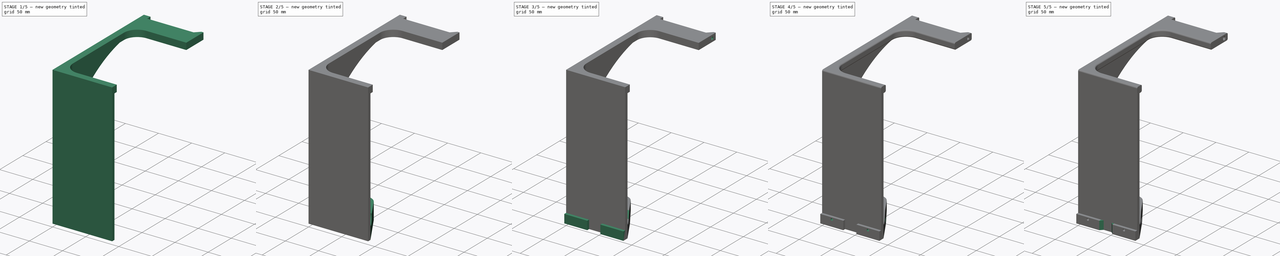
[diagram: build sequence overview — one tinted view per stage of 5, left to right]
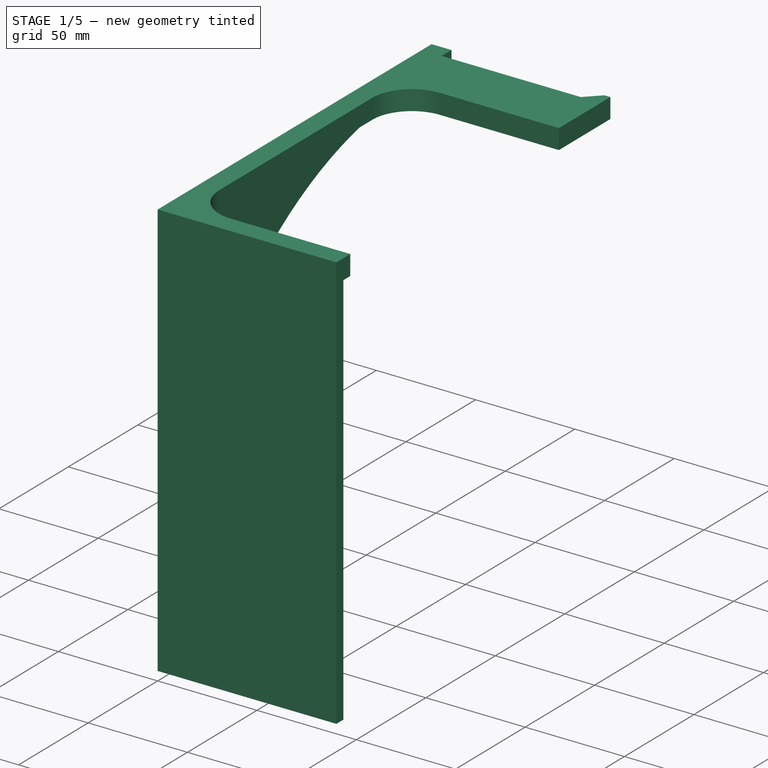
[diagram: stage 1 of 5 — iso view after this stage's code; geometry added in this stage tinted green]
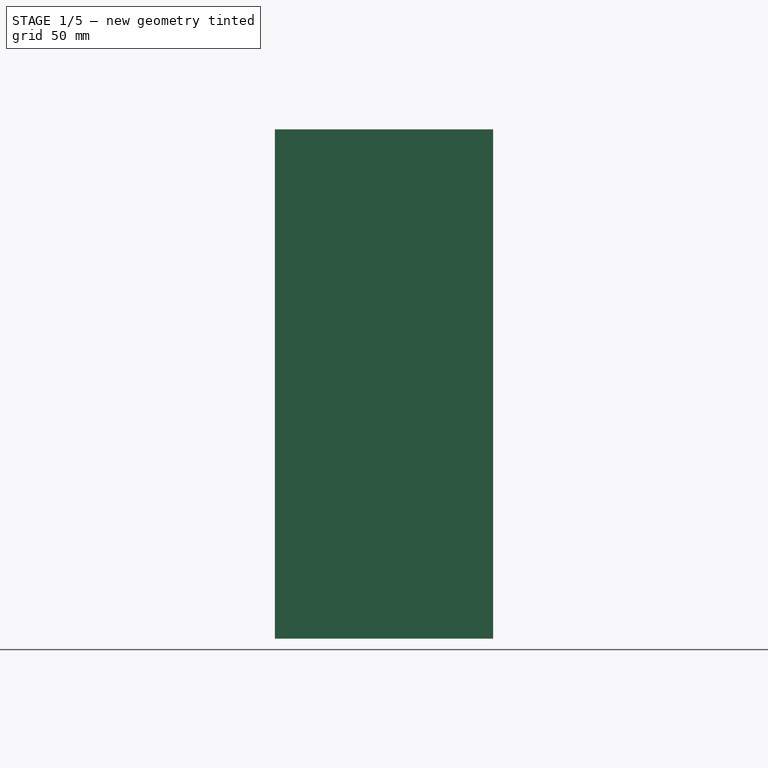
[diagram: stage 1 of 5 — front view after this stage's code; geometry added in this stage tinted green]
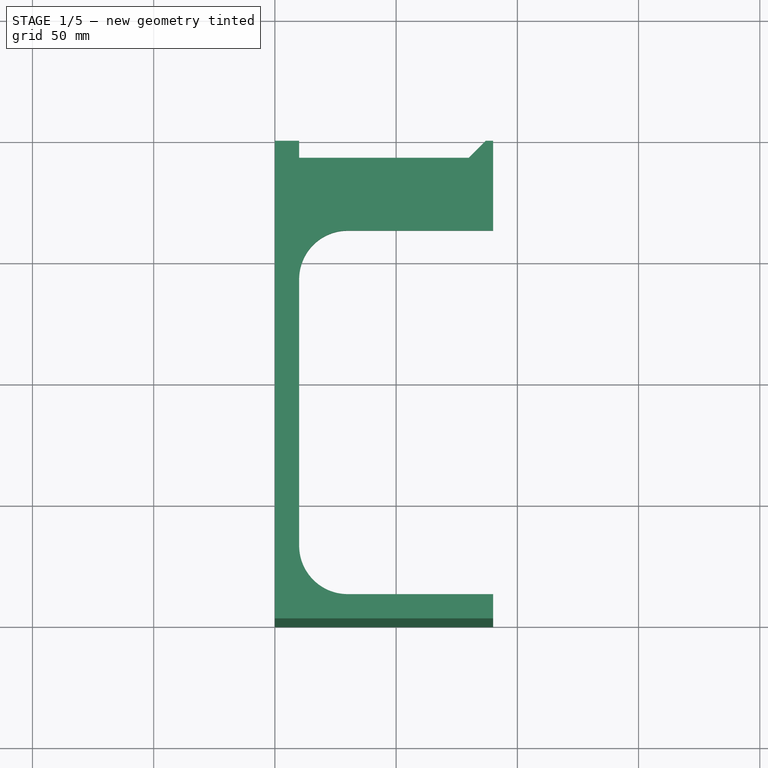
[diagram: stage 1 of 5 — top view after this stage's code; geometry added in this stage tinted green]
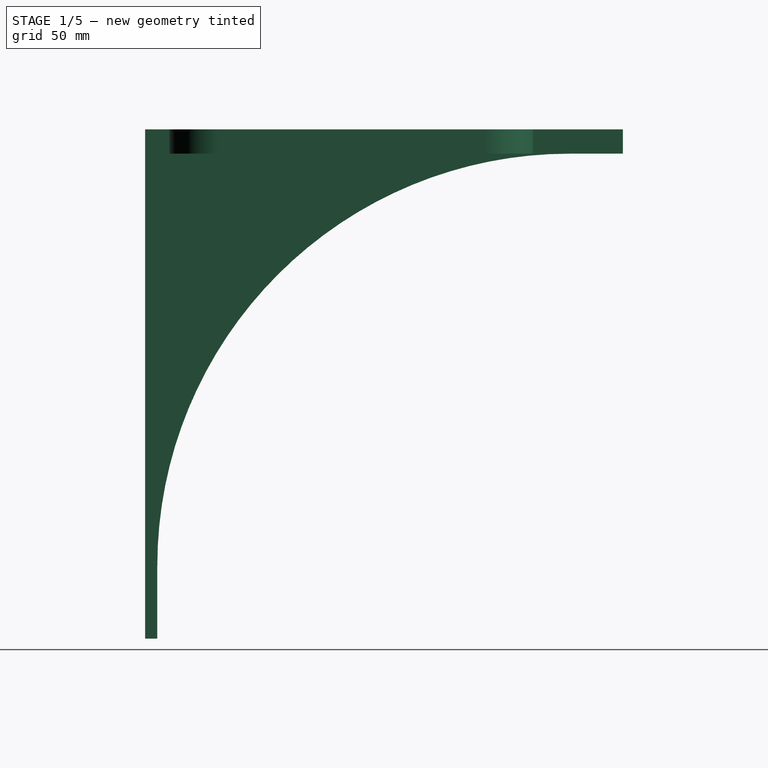
[diagram: stage 1 of 5 — right view after this stage's code; geometry added in this stage tinted green]
FCSTD DOCUMENT  (FreeCAD 1.0R38643 (Git))
Label: Fillament Spool Holder V1
License: All rights reserved
LicenseURL: https://en.wikipedia.org/wiki/All_rights_reserved
objects: Sketcher::SketchObject×12, PartDesign::Pocket×6, PartDesign::Pad×5, PartDesign::Fillet×3, PartDesign::Plane×1, PartDesign::Chamfer×1, PartDesign::Body×1
note: 71 computed .brp shape members not serialized (recipe doc carries the construction recipe); baked Part::Feature solids carry a one-line shape summary decoded from their .brp

FEATURE [Sketcher::SketchObject] Sketch  label="Sketch Left Profile"
  ArcFitTolerance = 1e-06
  AttachmentSupport = -> [XY_Plane]
  FullyConstrained = true
  MakeInternals = false
  MapMode = 5
  sketch-geometry (16):
    g0: LineSegment StartX=0 StartY=0 StartZ=0 EndX=90 EndY=0 EndZ=0
    g1: LineSegment StartX=90 StartY=0 StartZ=0 EndX=90 EndY=10 EndZ=0
    g2: LineSegment StartX=90 StartY=10 StartZ=0 EndX=30 EndY=10 EndZ=0
    g3: LineSegment StartX=10 StartY=30 StartZ=0 EndX=10 EndY=140 EndZ=0
    g4: LineSegment StartX=30 StartY=160 StartZ=0 EndX=90 EndY=160 EndZ=0
    g5: LineSegment StartX=90 StartY=160 StartZ=0 EndX=90 EndY=197 EndZ=0
    g6: LineSegment StartX=90 StartY=197 StartZ=0 EndX=87 EndY=197 EndZ=0
    g7: LineSegment StartX=80 StartY=190 StartZ=0 EndX=10 EndY=190 EndZ=0
    g8: LineSegment StartX=0 StartY=197 StartZ=0 EndX=0 EndY=0 EndZ=0
    g9: ArcOfCircle CenterX=30 CenterY=140 CenterZ=0 NormalX=0 NormalY=0 NormalZ=1 AngleXU=0 Radius=20 StartAngle=1.5708 EndAngle=3.14159
    g10: GeomPoint [constr] X=10 Y=160 Z=0
    g11: ArcOfCircle CenterX=30 CenterY=30 CenterZ=0 NormalX=0 NormalY=0 NormalZ=1 AngleXU=0 Radius=20 StartAngle=3.14159 EndAngle=4.71239
    g12: GeomPoint [constr] X=10 Y=10 Z=0
    g13: LineSegment StartX=10 StartY=190 StartZ=0 EndX=10 EndY=197 EndZ=0
    g14: LineSegment StartX=10 StartY=197 StartZ=0 EndX=0 EndY=197 EndZ=0
    g15: LineSegment StartX=87 StartY=197 StartZ=0 EndX=80 EndY=190 EndZ=0
  constraints (43):
    c: Coincident(g-1,g0)
    c: PointOnObject(g0,g-1)
    c: Coincident(g0,g1)
    c: Vertical(g1)
    c: Coincident(g1,g2)
    c: Horizontal(g2)
    c: Vertical(g3)
    c: Horizontal(g4)
    c: Vertical(g5)
    c: Coincident(g5,g6)
    c: Horizontal(g6)
    c: PointOnObject(g8,g-2)
    c: Horizontal(g7)
    c: Coincident(g8,g0)
    c: Coincident(g4,g5)
    c: PointOnObject(g10,g3)
    c: PointOnObject(g10,g4)
    c: Tangent(g3,g9) = 1.5708
    c: Tangent(g4,g9) = 1.5708
    c: PointOnObject(g12,g3)
    c: PointOnObject(g12,g2)
    c: Tangent(g3,g11) = 1.5708
    c: Tangent(g2,g11) = 1.5708
    c: Equal(g11,g9)
    c: Coincident(g13,g14)
    c: Vertical(g13)
    c: Horizontal(g14)
    c: Coincident(g7,g13)
    c: Coincident(g8,g14)
    c: Distance(g8,g3) = 10
    c: Distance(g1,g1) = 10
    c: Vertical(g7,g3)
    c: Equal(g4,g2)
    c: Distance(g6,g6) = 3
    c: Horizontal(g6,g13)
    c: DistanceY(g5,g5) = 37
    c: Distance(g4,g7) = 30
    c: Radius(g11) = 20
    c: Distance(g2,g4) = 150
    c: Angle(g-1,g15) = -2.35619
    c: Coincident(g15,g6)
    c: Coincident(g7,g15)
    c: Distance(g5,g13) = 80
FEATURE [PartDesign::Pad] Pad  label="Pad Left Profile"
  Direction = (0,0,1)
  Length = 10
  Length2 = 10
  Profile = -> Sketch
  ReferenceAxis = -> Sketch [N_Axis]
  Refine = true
  Suppressed = false
  Type = 0
FEATURE [Sketcher::SketchObject] Sketch001  label="Sketch Bottom Profile"
  ArcFitTolerance = 1e-06
  AttachmentSupport = -> [Pad]
  ExternalGeometry = -> [Pad]
  FullyConstrained = true
  MakeInternals = false
  MapMode = 5
  Placement = pos=(0,0,0) rot=(1,0,0;3.14159rad)
  sketch-geometry (4):
    g0: LineSegment StartX=0 StartY=0 StartZ=0 EndX=0 EndY=-5 EndZ=0
    g1: LineSegment StartX=0 StartY=-5 StartZ=0 EndX=90 EndY=-5 EndZ=0
    g2: LineSegment StartX=90 StartY=-5 StartZ=0 EndX=90 EndY=0 EndZ=0
    g3: LineSegment StartX=90 StartY=0 StartZ=0 EndX=0 EndY=0 EndZ=0
  constraints (10):
    c: Coincident(g0,g1)
    c: Coincident(g1,g2)
    c: Coincident(g2,g3)
    c: Coincident(g3,g0)
    c: Vertical(g0)
    c: Vertical(g2)
    c: Horizontal(g1)
    c: Coincident(g0,g-1)
    c: Coincident(g2,g-4)
    c: Distance(g2,g2) = 5
FEATURE [PartDesign::Pad] Pad001  label="Pad Bottom"
  BaseFeature = -> Pad
  Direction = (0,0,-1)
  Length = 200
  Length2 = 10
  Profile = -> Sketch001
  ReferenceAxis = -> Sketch001 [N_Axis]
  Refine = true
  Suppressed = false
  Type = 0
FEATURE [Sketcher::SketchObject] Sketch002  label="Sketch Curved Brace"
  ArcFitTolerance = 1e-06
  AttachmentSupport = -> [Pad001]
  ExternalGeometry = -> [Pad001]
  FullyConstrained = true
  MakeInternals = false
  MapMode = 5
  Placement = pos=(0,0,0) rot=(0.57735,-0.57735,-0.57735;2.0944rad)
  sketch-geometry (5):
    g0: LineSegment [constr] StartX=-175 StartY=0 StartZ=0 EndX=-175 EndY=-170 EndZ=0
    g1: LineSegment [constr] StartX=-175 StartY=-170 StartZ=0 EndX=-5 EndY=-170 EndZ=0
    g2: LineSegment StartX=-5 StartY=-170 StartZ=0 EndX=-5 EndY=0 EndZ=0
    g3: LineSegment StartX=-5 StartY=0 StartZ=0 EndX=-175 EndY=0 EndZ=0
    g4: ArcOfCircle CenterX=-175 CenterY=-170 CenterZ=0 NormalX=0 NormalY=0 NormalZ=1 AngleXU=0 Radius=170 StartAngle=0 EndAngle=1.5708
  constraints (15):
    c: Coincident(g0,g1)
    c: Coincident(g1,g2)
    c: Coincident(g2,g3)
    c: Coincident(g3,g0)
    c: Vertical(g0)
    c: Vertical(g2)
    c: Horizontal(g1)
    c: Horizontal(g3)
    c: PointOnObject(g2,g-1)
    c: Distance(g2,g-1) = 5
    c: DistanceX(g3,g3) = 170
    c: DistanceY(g2,g2) = 170
    c: Coincident(g4,g0)
    c: Coincident(g4,g1)
    c: Radius(g4) = 170
FEATURE [PartDesign::Pad] Pad002  label="Pad Curved Brace"
  BaseFeature = -> Pad001
  Direction = (-1,0,0)
  Length = 5
  Length2 = 10
  Profile = -> Sketch002
  ReferenceAxis = -> Sketch002 [N_Axis]
  Refine = true
  Reversed = true
  Suppressed = false
  Type = 0
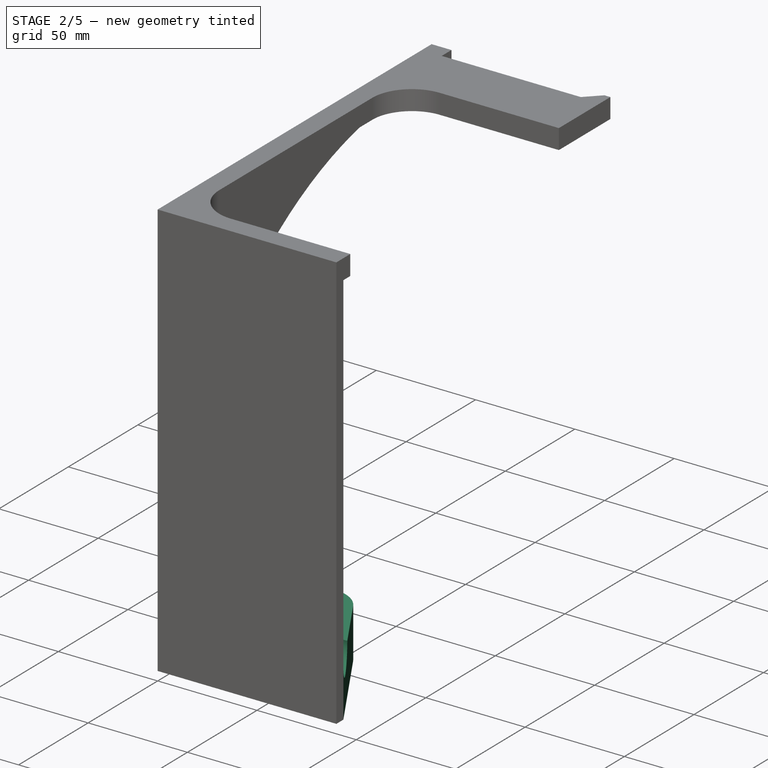
[diagram: stage 2 of 5 — iso view after this stage's code; geometry added in this stage tinted green]
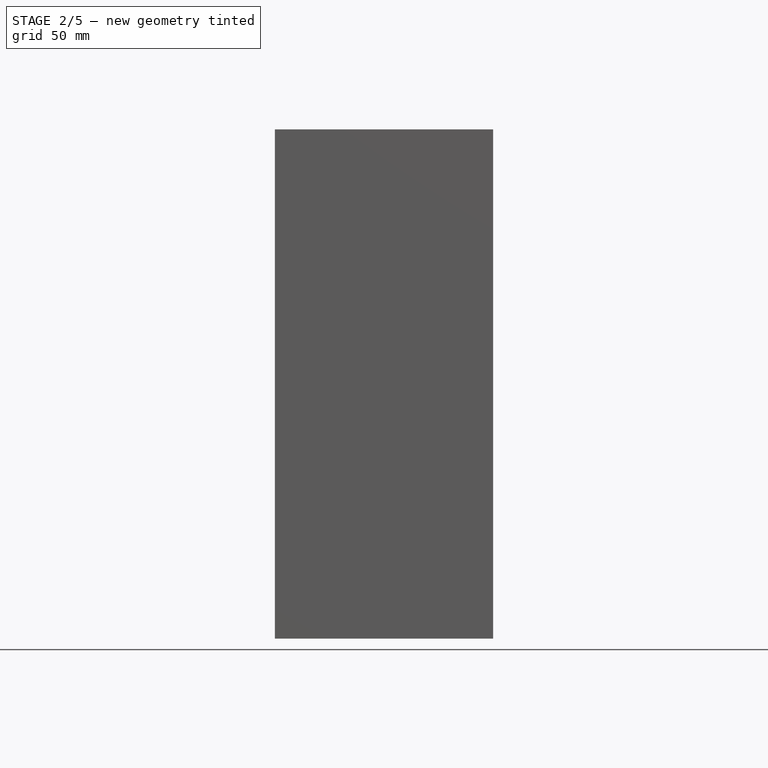
[diagram: stage 2 of 5 — front view after this stage's code; geometry added in this stage tinted green]
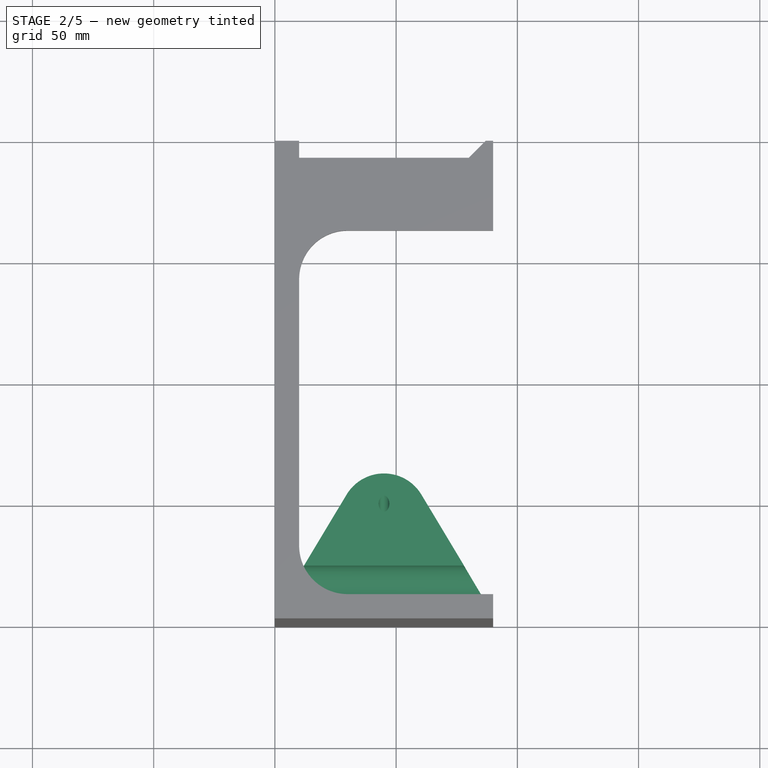
[diagram: stage 2 of 5 — top view after this stage's code; geometry added in this stage tinted green]
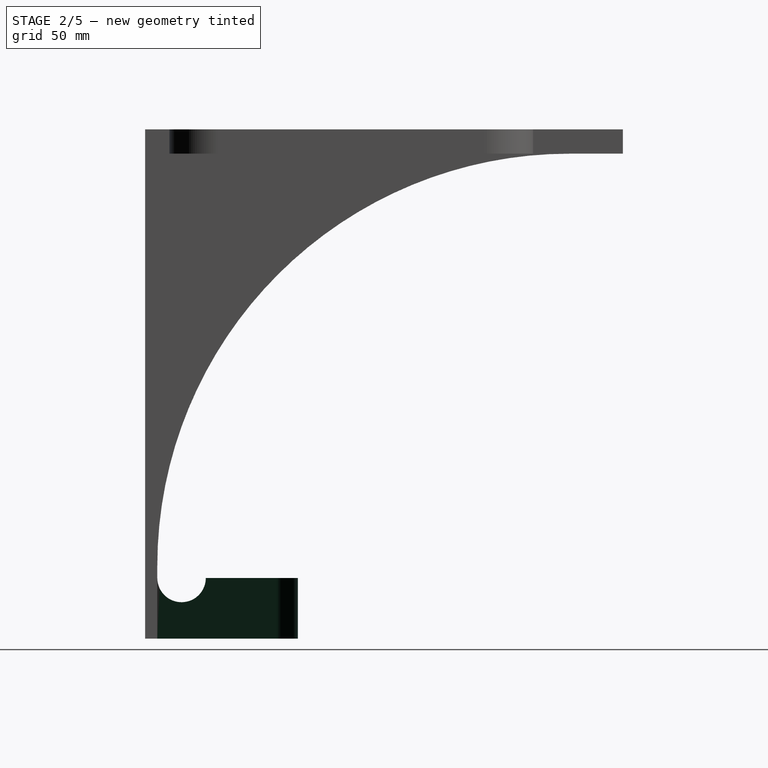
[diagram: stage 2 of 5 — right view after this stage's code; geometry added in this stage tinted green]
FEATURE [Sketcher::SketchObject] Sketch003  label="Sketch Filament Guide Block"
  ArcFitTolerance = 1e-06
  AttachmentSupport = -> [Pad002]
  ExternalGeometry = -> [Pad002]
  FullyConstrained = true
  MakeInternals = false
  MapMode = 5
  Placement = pos=(0,0,-200) rot=(1,0,0;3.14159rad)
  sketch-geometry (9):
    g0: LineSegment StartX=0 StartY=-5 StartZ=0 EndX=29.5663 EndY=-54.2629 EndZ=0
    g1: LineSegment StartX=60.4337 StartY=-54.2629 StartZ=0 EndX=90 EndY=-5 EndZ=0
    g2: ArcOfCircle CenterX=45 CenterY=-45 CenterZ=0 NormalX=0 NormalY=0 NormalZ=1 AngleXU=0 Radius=18 StartAngle=3.68214 EndAngle=5.74264
    g3: LineSegment StartX=90 StartY=-5 StartZ=0 EndX=45 EndY=-5 EndZ=0
    g4: LineSegment StartX=45 StartY=-5 StartZ=0 EndX=0 EndY=-5 EndZ=0
    g5: LineSegment [constr] StartX=0 StartY=0 StartZ=0 EndX=0 EndY=-5 EndZ=0
    g6: LineSegment [constr] StartX=0 StartY=-5 StartZ=0 EndX=90 EndY=-5 EndZ=0
    g7: LineSegment [constr] StartX=90 StartY=-5 StartZ=0 EndX=90 EndY=0 EndZ=0
    g8: LineSegment [constr] StartX=90 StartY=0 StartZ=0 EndX=0 EndY=0 EndZ=0
  constraints (23):
    c: Coincident(g4,g0)
    c: Coincident(g1,g3)
    c: Tangent(g0,g2) = -1.5708
    c: Tangent(g1,g2) = -1.5708
    c: Coincident(g3,g4)
    c: Equal(g3,g4)
    c: Vertical(g2,g3)
    c: Radius(g2) = 18
    c: DistanceY(g2,g3) = 40
    c: Coincident(g5,g6)
    c: Coincident(g6,g7)
    c: Coincident(g7,g8)
    c: Coincident(g8,g5)
    c: Vertical(g5)
    c: Vertical(g7)
    c: Horizontal(g6)
    c: Horizontal(g8)
    c: Coincident(g5,g-1)
    c: Distance(g5,g5) = 5
    c: DistanceX(g8,g8) = 90
    c: Coincident(g1,g6)
    c: PointOnObject(g3,g6)
    c: Coincident(g0,g5)
FEATURE [PartDesign::Pad] Pad003  label="Pad Filament guide Block"
  BaseFeature = -> Pad002
  Direction = (0,0,-1)
  Length = 25
  Length2 = 10
  Profile = -> Sketch003
  ReferenceAxis = -> Sketch003 [N_Axis]
  Refine = true
  Reversed = true
  Suppressed = false
  Type = 0
FEATURE [Sketcher::SketchObject] Sketch004  label="Sketch Cuttout in Guide Block"
  ArcFitTolerance = 1e-06
  AttachmentSupport = -> [Pad003]
  ExternalGeometry = -> [Pad003]
  FullyConstrained = true
  MakeInternals = false
  MapMode = 5
  Placement = pos=(90,0,0) rot=(0.57735,0.57735,0.57735;2.0944rad)
  sketch-geometry (5):
    g0: Circle CenterX=15 CenterY=-175 CenterZ=0 NormalX=0 NormalY=0 NormalZ=1 AngleXU=0 Radius=10
    g1: LineSegment [constr] StartX=0 StartY=-200 StartZ=0 EndX=25 EndY=-200 EndZ=0
    g2: LineSegment [constr] StartX=25 StartY=-200 StartZ=0 EndX=25 EndY=-175 EndZ=0
    g3: LineSegment [constr] StartX=25 StartY=-175 StartZ=0 EndX=0 EndY=-175 EndZ=0
    g4: LineSegment [constr] StartX=0 StartY=-175 StartZ=0 EndX=0 EndY=-200 EndZ=0
  constraints (15):
    c: Diameter(g0) = 20
    c: Coincident(g1,g2)
    c: Coincident(g2,g3)
    c: Coincident(g3,g4)
    c: Coincident(g4,g1)
    c: Horizontal(g1)
    c: Horizontal(g3)
    c: Vertical(g2)
    c: Vertical(g4)
    c: Distance(g2,g4) = 25
    c: Distance(g1,g3) = 25
    c: PointOnObject(g1,g-2)
    c: PointOnObject(g0,g3)
    c: Distance(g-1,g1) = 200
    c: Distance(g0,g-2) = 15
FEATURE [PartDesign::Pocket] Pocket  label="Pocket Cuttout in Guide Block"
  BaseFeature = -> Pad003
  Direction = (-1,0,0)
  Length = 5
  Length2 = 5
  Profile = -> Sketch004
  ReferenceAxis = -> Sketch004 [N_Axis]
  Refine = true
  Suppressed = false
  Type = 1
FEATURE [Sketcher::SketchObject] Sketch005  label="Sketch Filament Path"
  ArcFitTolerance = 1e-06
  AttachmentOffset = pos=(0,0,45) rot=(0,0,1;0rad)
  AttachmentSupport = -> [YZ_Plane]
  FullyConstrained = true
  MakeInternals = false
  MapMode = 5
  Placement = pos=(45,0,0) rot=(0.57735,0.57735,0.57735;2.0944rad)
  sketch-geometry (1):
    g0: LineSegment StartX=247 StartY=0 StartZ=0 EndX=-1.47e-14 EndY=-220 EndZ=0
  constraints (4):
    c: PointOnObject(g0,g-1)
    c: PointOnObject(g0,g-2)
    c: Distance(g0,g-2) = 247
    c: DistanceY(g0,g-1) = 220
FEATURE [PartDesign::Plane] DatumPlane  label="DatumPlane Normal to Filament Path"
  AttachmentSupport = -> [Sketch005]
  Length = 153.106
  MapMode = 7
  Placement = pos=(45,247,-3.4e-15) rot=(0,0.409198,0.912446;3.14159rad)
  ResizeMode = 0
  Width = 353.779
FEATURE [Sketcher::SketchObject] Sketch006  label="Sketch Filamanet Guide PTFE Hole"
  ArcFitTolerance = 1e-06
  AttachmentSupport = -> [DatumPlane]
  FullyConstrained = true
  MakeInternals = false
  MapMode = 5
  Placement = pos=(45,247,2.02e-14) rot=(0,0.409198,0.912446;3.14159rad)
  sketch-geometry (1):
    g0: Circle CenterX=0 CenterY=0 CenterZ=0 NormalX=0 NormalY=0 NormalZ=1 AngleXU=0 Radius=2.2
  constraints (2):
    c: Diameter(g0) = 4.4
    c: Coincident(g0,g-1)
FEATURE [PartDesign::Pocket] Pocket001  label="Pocket Filamament Guide PTFE Hole"
  BaseFeature = -> Pocket
  Direction = (0,-0.746742,-0.665114)
  Length = 5
  Length2 = 5
  Profile = -> Sketch006
  ReferenceAxis = -> Sketch006 [N_Axis]
  Refine = true
  Suppressed = false
  Type = 1
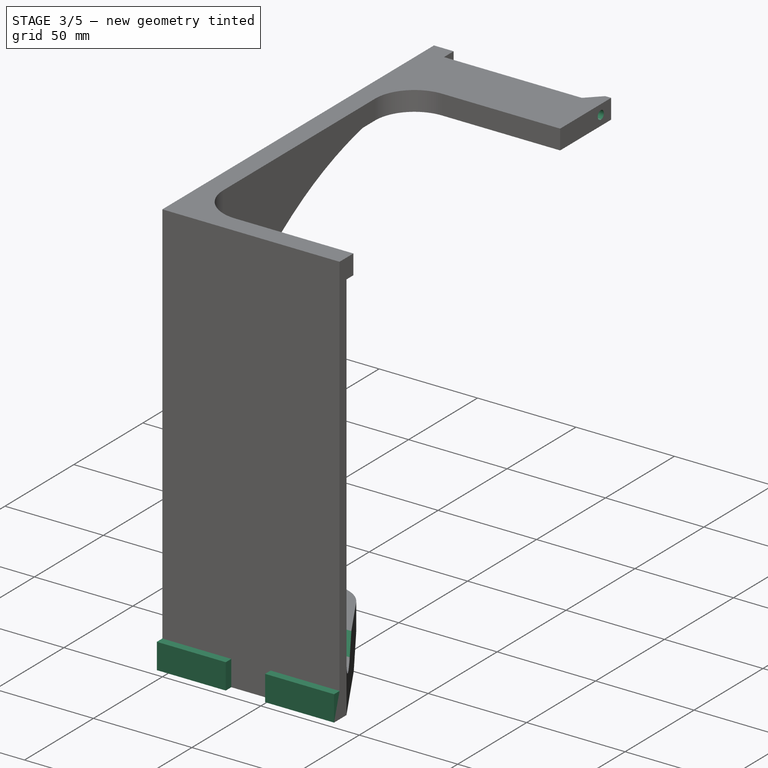
[diagram: stage 3 of 5 — iso view after this stage's code; geometry added in this stage tinted green]
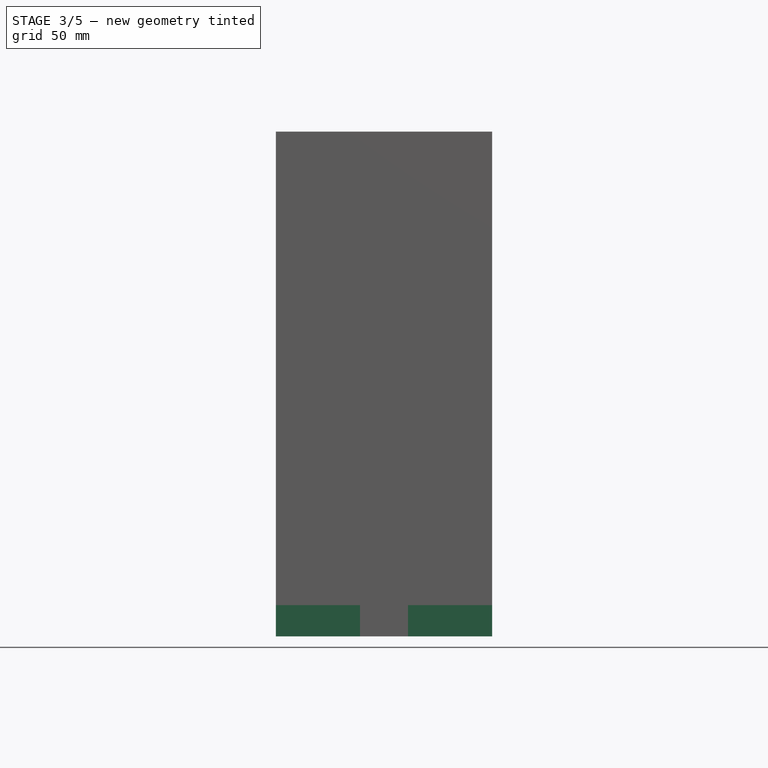
[diagram: stage 3 of 5 — front view after this stage's code; geometry added in this stage tinted green]
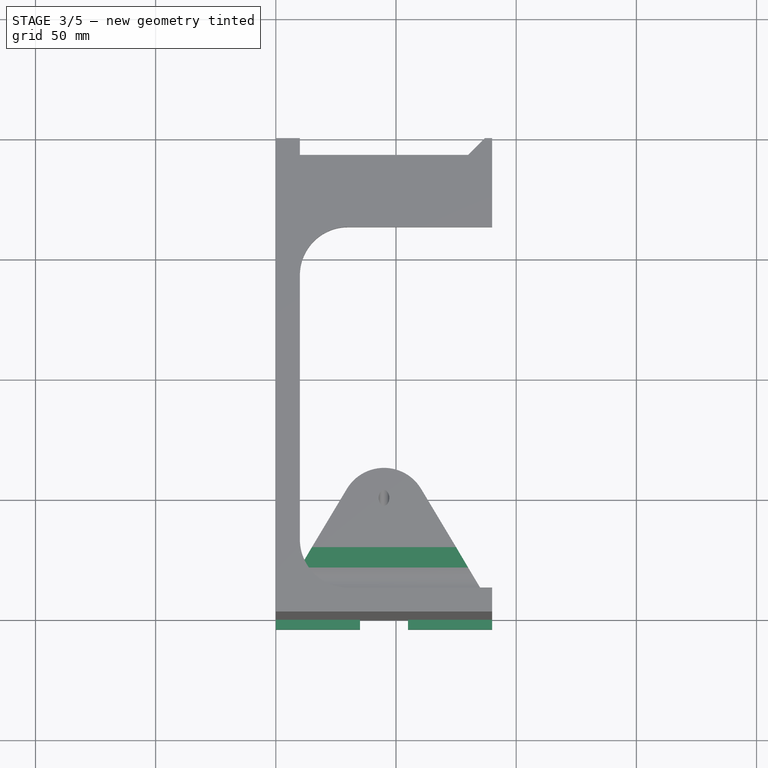
[diagram: stage 3 of 5 — top view after this stage's code; geometry added in this stage tinted green]
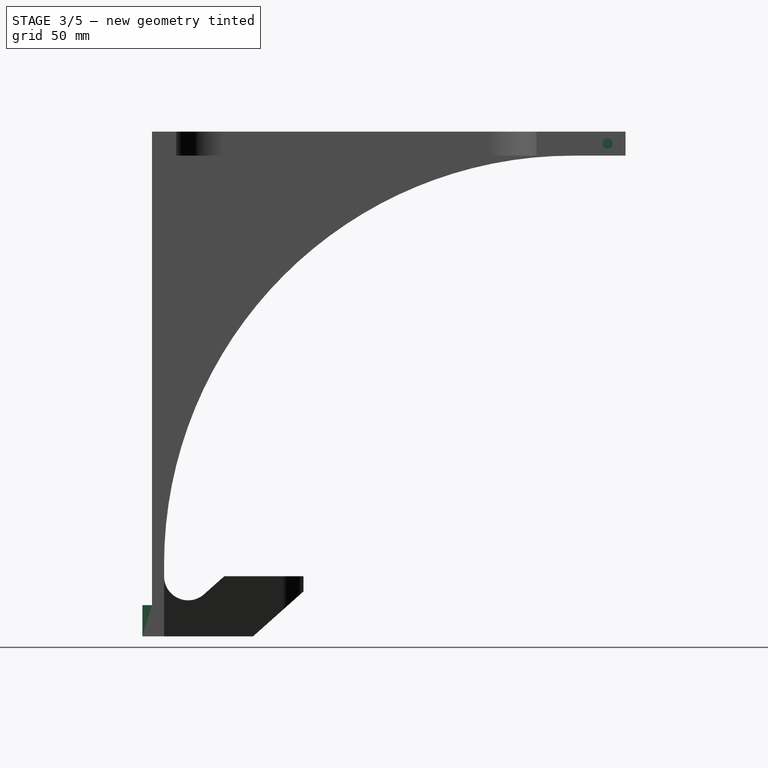
[diagram: stage 3 of 5 — right view after this stage's code; geometry added in this stage tinted green]
FEATURE [Sketcher::SketchObject] Sketch007  label="Sketch Parallel Cuttouts in Filament Guide Block"
  ArcFitTolerance = 1e-06
  AttachmentSupport = -> [Pocket001]
  ExternalGeometry = -> [Sketch005,Pocket001]
  FullyConstrained = true
  MakeInternals = false
  MapMode = 5
  Placement = pos=(90,0,0) rot=(0.57735,0.57735,0.57735;2.0944rad)
  sketch-geometry (9):
    g0: LineSegment StartX=36.586 StartY=-169.165 StartZ=0 EndX=21.6511 EndY=-182.467 EndZ=0
    g1: LineSegment StartX=21.6511 StartY=-182.467 StartZ=0 EndX=8.34886 EndY=-167.533 EndZ=0
    g2: LineSegment StartX=8.34886 StartY=-167.533 StartZ=0 EndX=23.2837 EndY=-154.23 EndZ=0
    g3: LineSegment StartX=23.2837 StartY=-154.23 StartZ=0 EndX=36.586 EndY=-169.165 EndZ=0
    g4: Circle [constr] CenterX=15 CenterY=-175 CenterZ=0 NormalX=0 NormalY=0 NormalZ=1 AngleXU=0 Radius=10
    g5: LineSegment StartX=89.609 StartY=-157.595 StartZ=0 EndX=-9e-16 EndY=-237.409 EndZ=0
    g6: LineSegment StartX=-9e-16 StartY=-237.409 StartZ=0 EndX=19.9534 EndY=-259.811 EndZ=0
    g7: LineSegment StartX=19.9534 StartY=-259.811 StartZ=0 EndX=109.562 EndY=-179.998 EndZ=0
    g8: LineSegment StartX=109.562 StartY=-179.998 StartZ=0 EndX=89.609 EndY=-157.595 EndZ=0
  constraints (26):
    c: Coincident(g0,g1)
    c: Coincident(g1,g2)
    c: Coincident(g2,g3)
    c: Coincident(g3,g0)
    c: Tangent(g0,g4) = 1.5708
    c: Coincident(g5,g6)
    c: Coincident(g6,g7)
    c: Coincident(g7,g8)
    c: Coincident(g8,g5)
    c: Perpendicular(g8,g5)
    c: Parallel(g5,g7)
    c: Parallel(g6,g8)
    c: Distance(g8,g8) = 30
    c: Distance(g7,g7) = 120
    c: PointOnObject(g5,g-2)
    c: Perpendicular(g0,g1)
    c: Perpendicular(g1,g2)
    c: PointOnObject(g1,g4)
    c: Perpendicular(g3,g2)
    c: Distance(g2,g2) = 20
    c: Distance(g4,g-2) = 15
    c: Diameter(g4) = 20
    c: Distance(g4,g-1) = 175
    c: Parallel(g0,g-3)
    c: Parallel(g5,g-3)
    c: Distance(g5,g-3) = 13
FEATURE [PartDesign::Pocket] Pocket002  label="Pocket Parallel Cuttouts in Filament Guide Block"
  BaseFeature = -> Pocket001
  Direction = (-1,0,0)
  Length = 5
  Length2 = 5
  Profile = -> Sketch007
  ReferenceAxis = -> Sketch007 [N_Axis]
  Refine = true
  Suppressed = false
  Type = 1
FEATURE [Sketcher::SketchObject] Sketch008  label="Sketch PTFE Bushing Hole"
  ArcFitTolerance = 1e-06
  AttachmentSupport = -> [Pocket002]
  FullyConstrained = false
  MakeInternals = false
  MapMode = 5
  Placement = pos=(90,0,0) rot=(0.57735,0.57735,0.57735;2.0944rad)
  sketch-geometry (3):
    g0: LineSegment [constr] StartX=190 StartY=10 StartZ=0 EndX=189.5 EndY=5 EndZ=0
    g1: LineSegment [constr] StartX=189.5 StartY=5 StartZ=0 EndX=190 EndY=2e-16 EndZ=0
    g2: Circle CenterX=189.5 CenterY=5 CenterZ=0 NormalX=0 NormalY=0 NormalZ=1 AngleXU=0 Radius=2.2
  constraints (4):
    c: Coincident(g0,g1)
    c: Equal(g0,g1)
    c: Diameter(g2) = 4.4
    c: Coincident(g2,g0)
FEATURE [PartDesign::Pocket] Pocket003  label="Pocket PTFE Bushing Hole"
  BaseFeature = -> Pocket002
  Direction = (-1,0,0)
  Length = 85
  Length2 = 5
  Profile = -> Sketch008
  ReferenceAxis = -> Sketch008 [N_Axis]
  Refine = true
  Suppressed = false
  Type = 0
FEATURE [Sketcher::SketchObject] Sketch009  label="Sketch Screw Pads"
  ArcFitTolerance = 1e-06
  AttachmentSupport = -> [Pocket003]
  FullyConstrained = true
  MakeInternals = false
  MapMode = 5
  Placement = pos=(0,0,0) rot=(1,0,0;1.5708rad)
  sketch-geometry (8):
    g0: LineSegment StartX=0 StartY=-187 StartZ=0 EndX=0 EndY=-200 EndZ=0
    g1: LineSegment StartX=0 StartY=-200 StartZ=0 EndX=35 EndY=-200 EndZ=0
    g2: LineSegment StartX=35 StartY=-200 StartZ=0 EndX=35 EndY=-187 EndZ=0
    g3: LineSegment StartX=35 StartY=-187 StartZ=0 EndX=0 EndY=-187 EndZ=0
    g4: LineSegment StartX=55 StartY=-187 StartZ=0 EndX=55 EndY=-200 EndZ=0
    g5: LineSegment StartX=55 StartY=-200 StartZ=0 EndX=90 EndY=-200 EndZ=0
    g6: LineSegment StartX=90 StartY=-200 StartZ=0 EndX=90 EndY=-187 EndZ=0
    g7: LineSegment StartX=90 StartY=-187 StartZ=0 EndX=55 EndY=-187 EndZ=0
  constraints (24):
    c: Coincident(g0,g1)
    c: Coincident(g1,g2)
    c: Coincident(g2,g3)
    c: Coincident(g3,g0)
    c: Vertical(g0)
    c: Vertical(g2)
    c: Horizontal(g1)
    c: Horizontal(g3)
    c: Coincident(g4,g5)
    c: Coincident(g5,g6)
    c: Coincident(g6,g7)
    c: Coincident(g7,g4)
    c: Vertical(g4)
    c: Vertical(g6)
    c: Horizontal(g5)
    c: Horizontal(g7)
    c: DistanceX(g3,g3) = 35
    c: DistanceX(g5,g5) = 35
    c: Equal(g2,g4)
    c: Distance(g6,g6) = 13
    c: Horizontal(g1,g4)
    c: DistanceX(g0,g6) = 90
    c: PointOnObject(g0,g-2)
    c: Distance(g0,g-1) = 200
FEATURE [PartDesign::Pad] Pad004  label="Pad Screw Pads"
  BaseFeature = -> Pocket003
  Direction = (0,-1,2e-16)
  Length = 4
  Length2 = 10
  Profile = -> Sketch009
  ReferenceAxis = -> Sketch009 [N_Axis]
  Refine = true
  Suppressed = false
  Type = 0
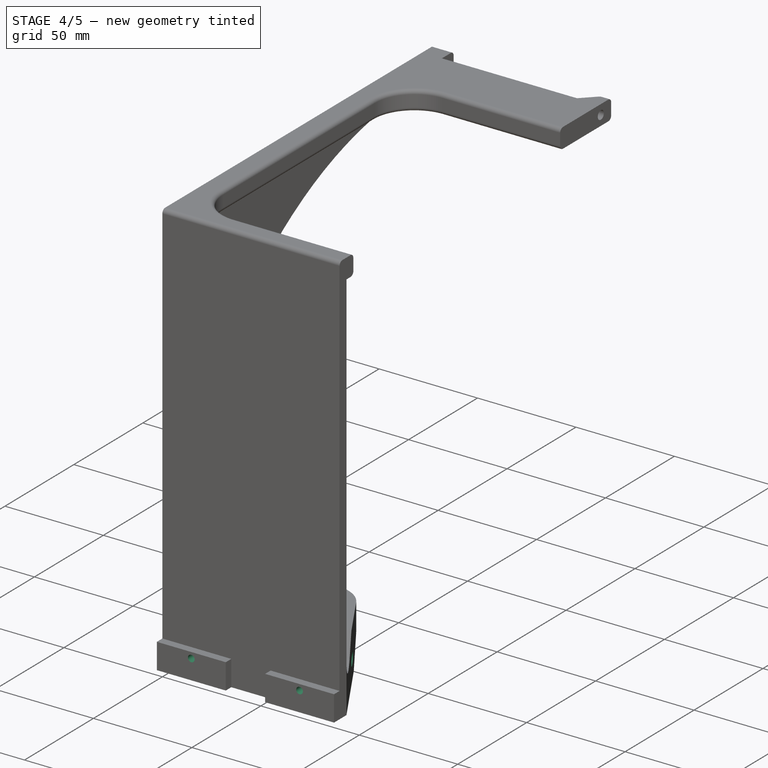
[diagram: stage 4 of 5 — iso view after this stage's code; geometry added in this stage tinted green]
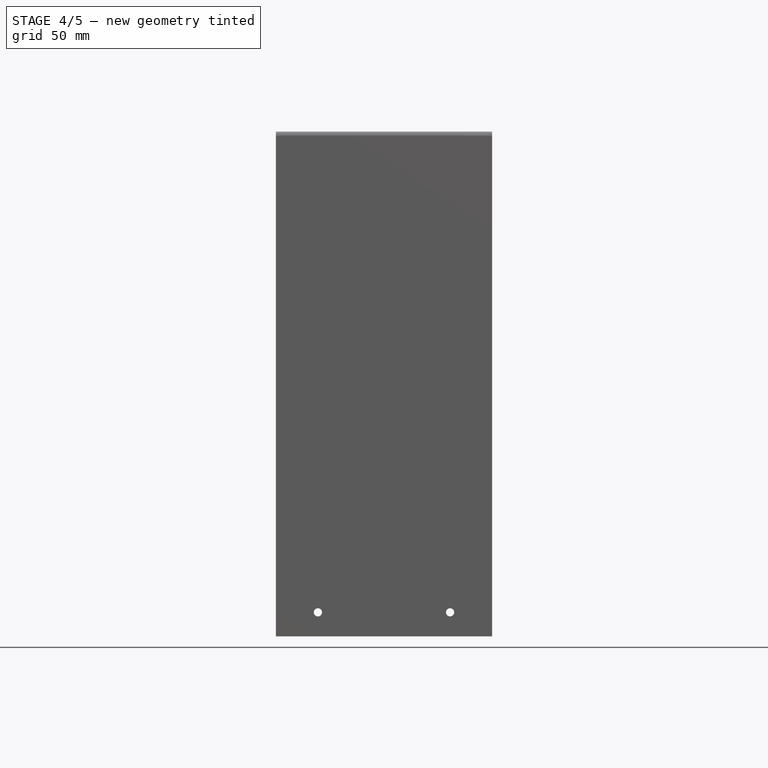
[diagram: stage 4 of 5 — front view after this stage's code; geometry added in this stage tinted green]
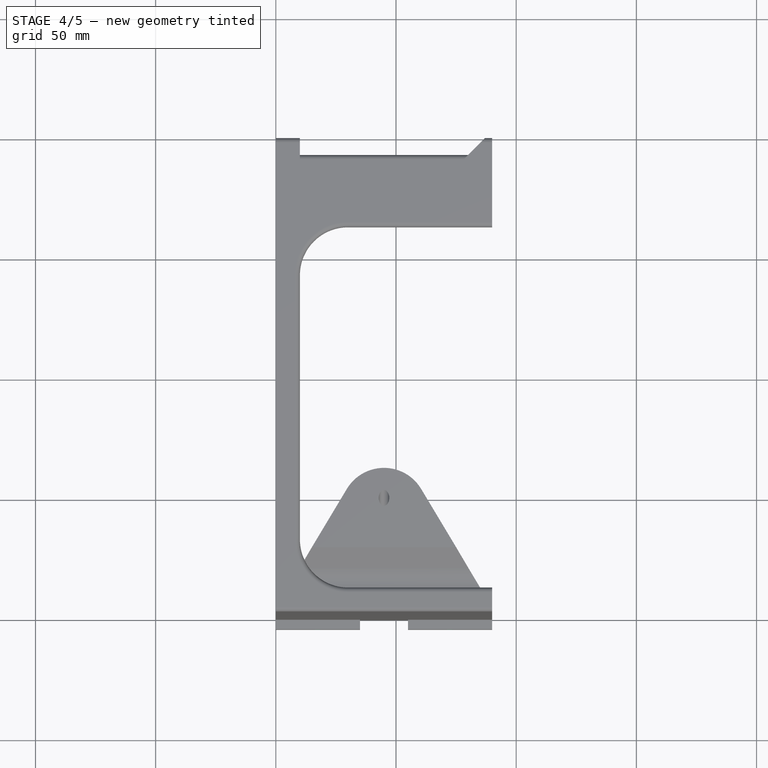
[diagram: stage 4 of 5 — top view after this stage's code; geometry added in this stage tinted green]
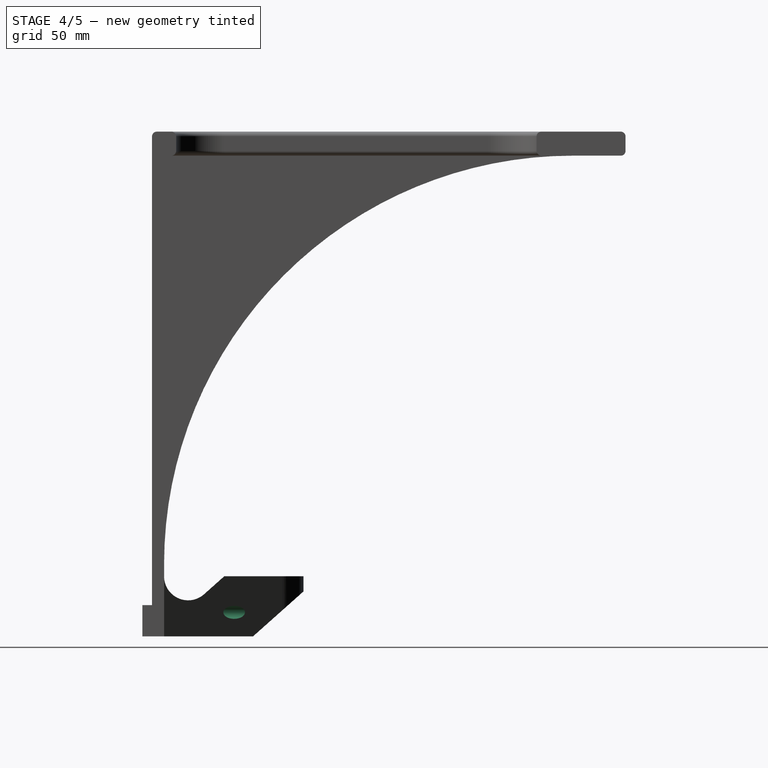
[diagram: stage 4 of 5 — right view after this stage's code; geometry added in this stage tinted green]
FEATURE [Sketcher::SketchObject] Sketch010  label="Sketch Screw Holes"
  ArcFitTolerance = 1e-06
  AttachmentSupport = -> [Pad004]
  FullyConstrained = true
  MakeInternals = false
  MapMode = 5
  Placement = pos=(0,-4,0) rot=(1,0,0;1.5708rad)
  sketch-geometry (2):
    g0: Circle CenterX=17.5 CenterY=-190 CenterZ=0 NormalX=0 NormalY=0 NormalZ=1 AngleXU=0 Radius=1.7
    g1: Circle CenterX=72.5 CenterY=-190 CenterZ=0 NormalX=0 NormalY=0 NormalZ=1 AngleXU=0 Radius=1.7
  constraints (6):
    c: Diameter(g1) = 3.4
    c: Equal(g1,g0)
    c: Horizontal(g0,g1)
    c: Distance(g0,g-2) = 17.5
    c: Distance(g1,g-2) = 72.5
    c: Distance(g0,g-1) = 190
FEATURE [PartDesign::Pocket] Pocket004  label="Pocket Screw Holes"
  BaseFeature = -> Pad004
  Direction = (0,1,-2e-16)
  Length = 5
  Length2 = 5
  Profile = -> Sketch010
  ReferenceAxis = -> Sketch010 [N_Axis]
  Refine = true
  Suppressed = false
  Type = 1
FEATURE [Sketcher::SketchObject] Sketch011  label="Sketch Screw Head Recess"
  ArcFitTolerance = 1e-06
  AttachmentSupport = -> [Pocket004]
  FullyConstrained = true
  MakeInternals = false
  MapMode = 5
  Placement = pos=(0,0,0) rot=(1,0,0;1.5708rad)
  sketch-geometry (2):
    g0: Circle CenterX=72.5 CenterY=-190 CenterZ=0 NormalX=0 NormalY=0 NormalZ=1 AngleXU=0 Radius=2.7
    g1: Circle CenterX=17.5 CenterY=-190 CenterZ=0 NormalX=0 NormalY=0 NormalZ=1 AngleXU=0 Radius=2.7
  constraints (6):
    c: Diameter(g0) = 5.4
    c: Equal(g1,g0)
    c: Horizontal(g1,g0)
    c: Distance(g1,g-2) = 17.5
    c: Distance(g0,g-2) = 72.5
    c: DistanceY(g1,g-1) = 190
FEATURE [PartDesign::Pocket] Pocket005  label="Pocket Screw Head Recess"
  BaseFeature = -> Pocket004
  Direction = (0,1,-2e-16)
  Length = 5
  Length2 = 5
  Profile = -> Sketch011
  ReferenceAxis = -> Sketch011 [N_Axis]
  Refine = true
  Suppressed = false
  Type = 1
FEATURE [PartDesign::Fillet] Fillet
  Base = -> Pocket005 [Edge35,Edge12,Edge3,Edge22,Edge27,Edge4,Vertex8,Edge24,Edge20,Edge29,Edge31,Edge25]
  BaseFeature = -> Pocket005
  Radius = 2
  Refine = true
  SupportTransform = false
  Suppressed = false
  UseAllEdges = false
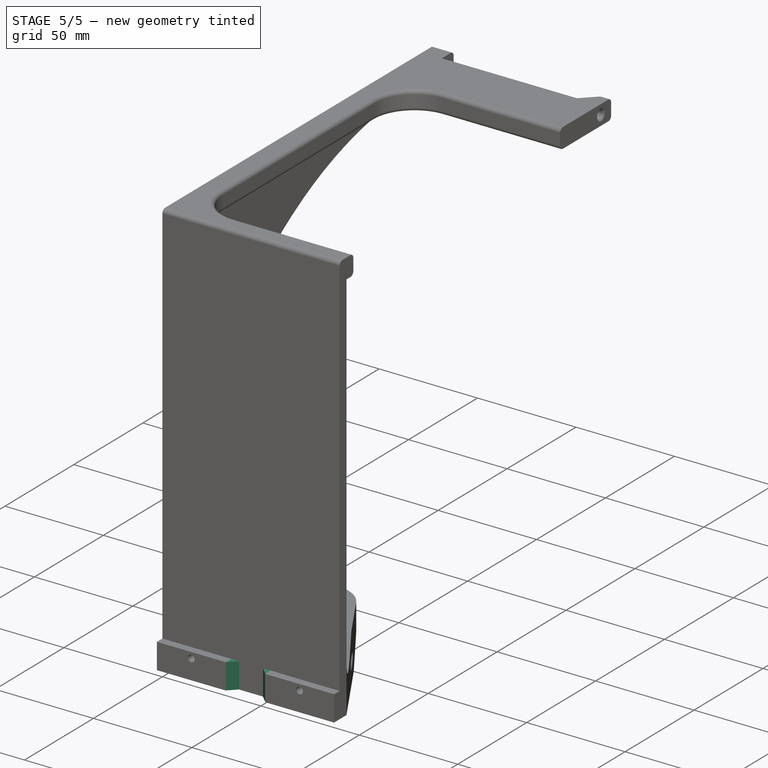
[diagram: stage 5 of 5 — iso view after this stage's code; geometry added in this stage tinted green]
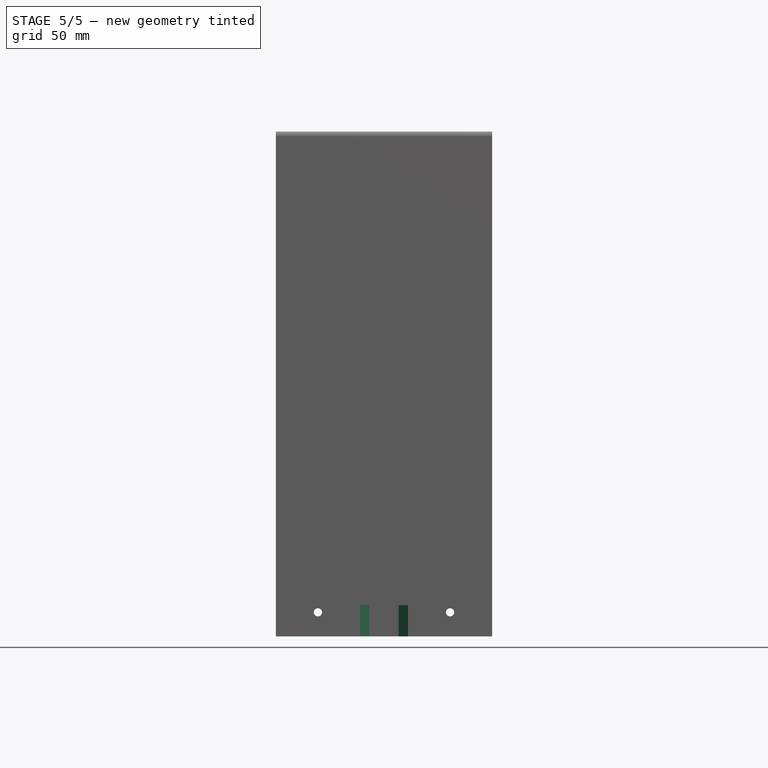
[diagram: stage 5 of 5 — front view after this stage's code; geometry added in this stage tinted green]
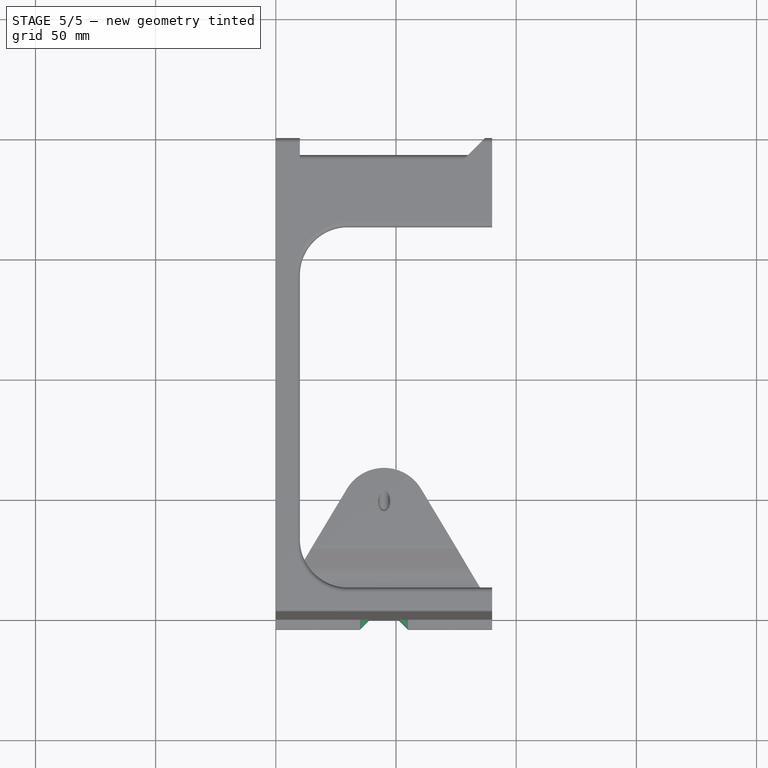
[diagram: stage 5 of 5 — top view after this stage's code; geometry added in this stage tinted green]
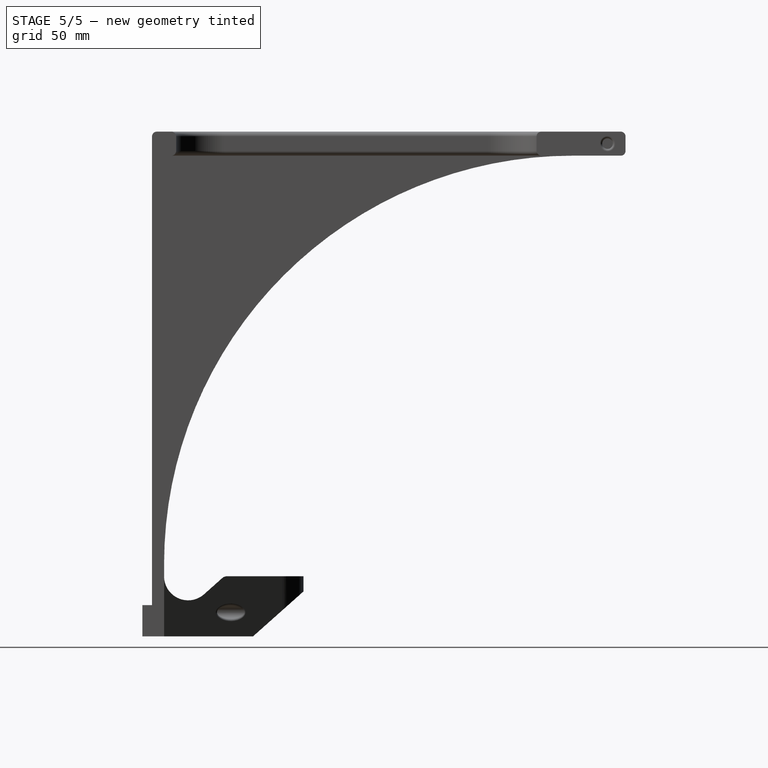
[diagram: stage 5 of 5 — right view after this stage's code; geometry added in this stage tinted green]
FEATURE [PartDesign::Chamfer] Chamfer
  Angle = 45
  Base = -> Fillet [Edge123,Edge120]
  BaseFeature = -> Fillet
  ChamferType = 0
  FlipDirection = false
  Refine = true
  Size = 3.9
  Size2 = 1
  SupportTransform = false
  Suppressed = false
  UseAllEdges = false
FEATURE [PartDesign::Fillet] Fillet001
  Base = -> Chamfer [Edge68,Edge62,Edge22,Edge70,Edge132]
  BaseFeature = -> Chamfer
  Radius = 1
  Refine = true
  SupportTransform = false
  Suppressed = false
  UseAllEdges = false
FEATURE [PartDesign::Fillet] Fillet002
  Base = -> Fillet001 [Edge126]
  BaseFeature = -> Fillet001
  Radius = 3
  Refine = true
  SupportTransform = false
  Suppressed = false
  UseAllEdges = false
FEATURE [PartDesign::Body] Body
  AllowCompound = false
  Group = -> [Sketch,Pad,Sketch001,Pad001,Sketch002,Pad002,Sketch003,Pad003,Sketch004,Pocket,Sketch005,DatumPlane,Sketch006,Pocket001,Sketch007,Pocket002,Sketch008,Pocket003,Sketch009,Pad004,Sketch010,Pocket004,Sketch011,Pocket005,Fillet,Chamfer,Fillet001,Fillet002]
  Origin = -> Origin
  Placement = pos=(0,0,0) rot=(0,1,0;4.71239rad)
  Tip = -> Fillet002
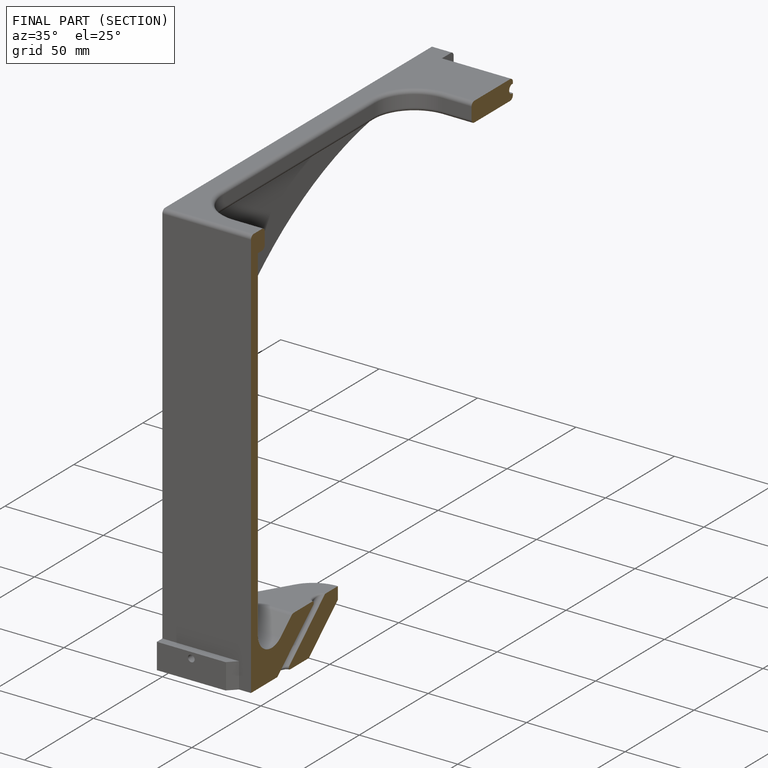
[diagram: finished part — half-section view (interior)]
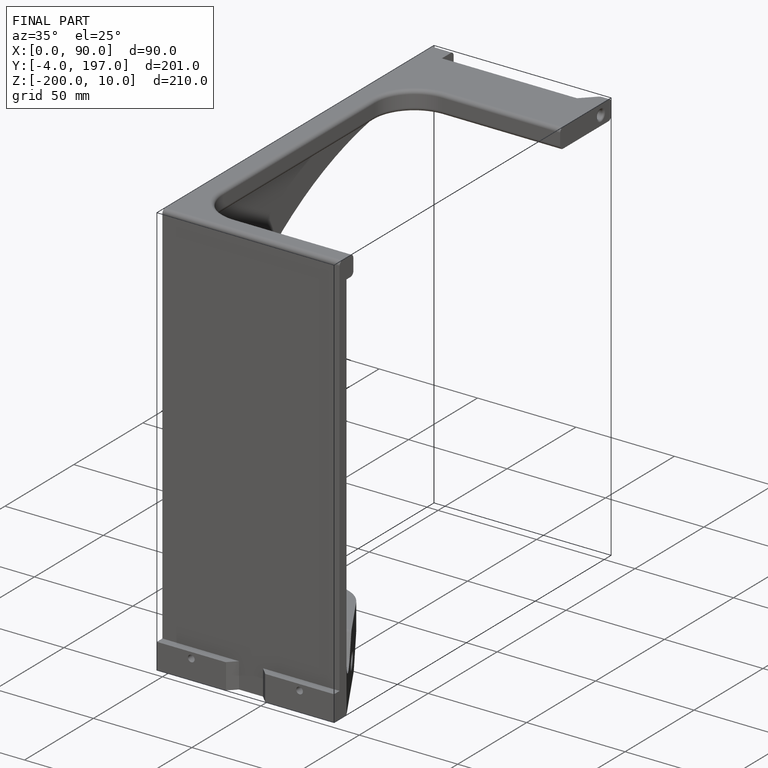
[diagram: finished part — iso view with bounding-box wireframe]
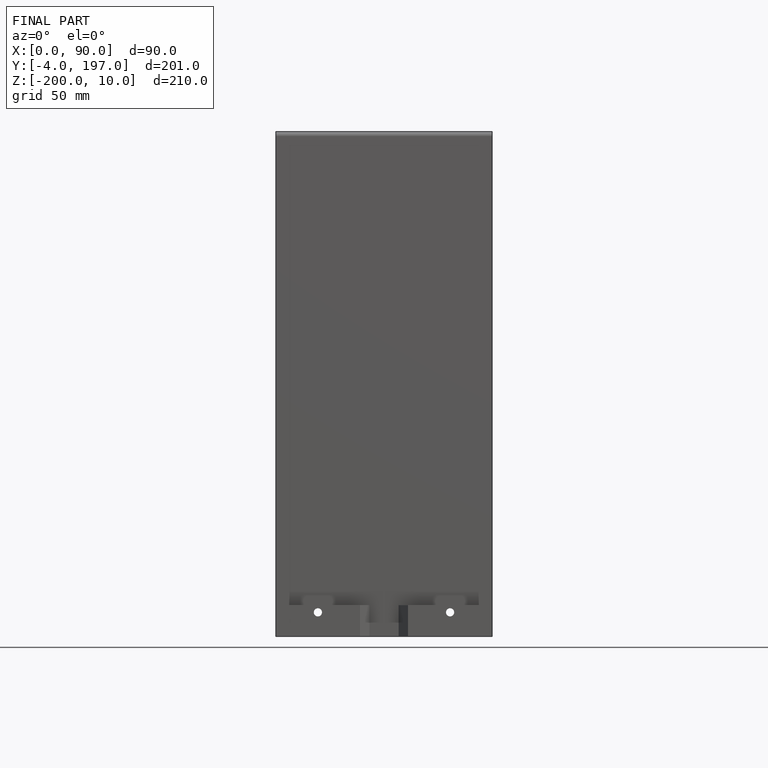
[diagram: finished part — front view with bounding-box wireframe]
